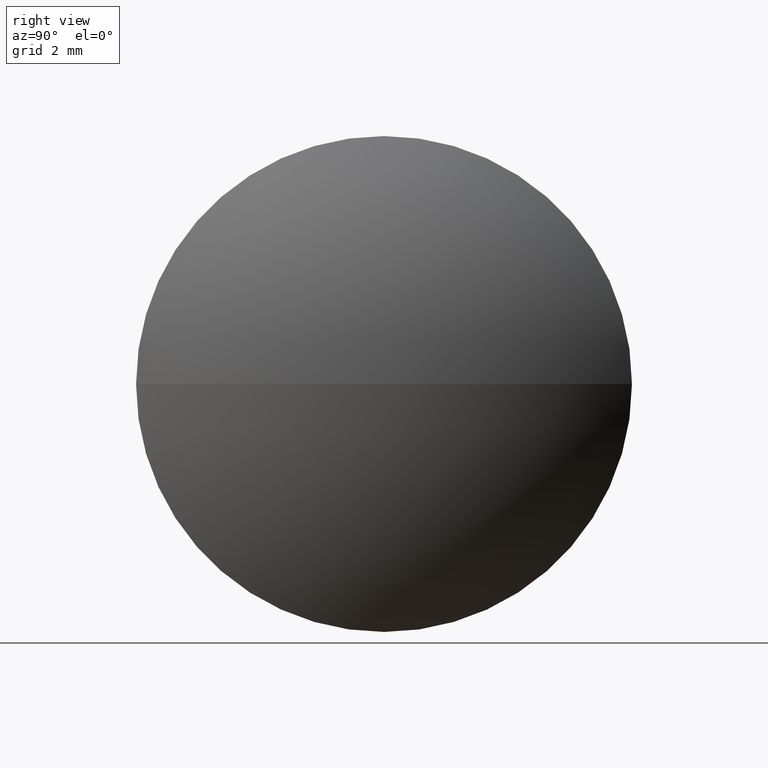
[diagram: clean part render]
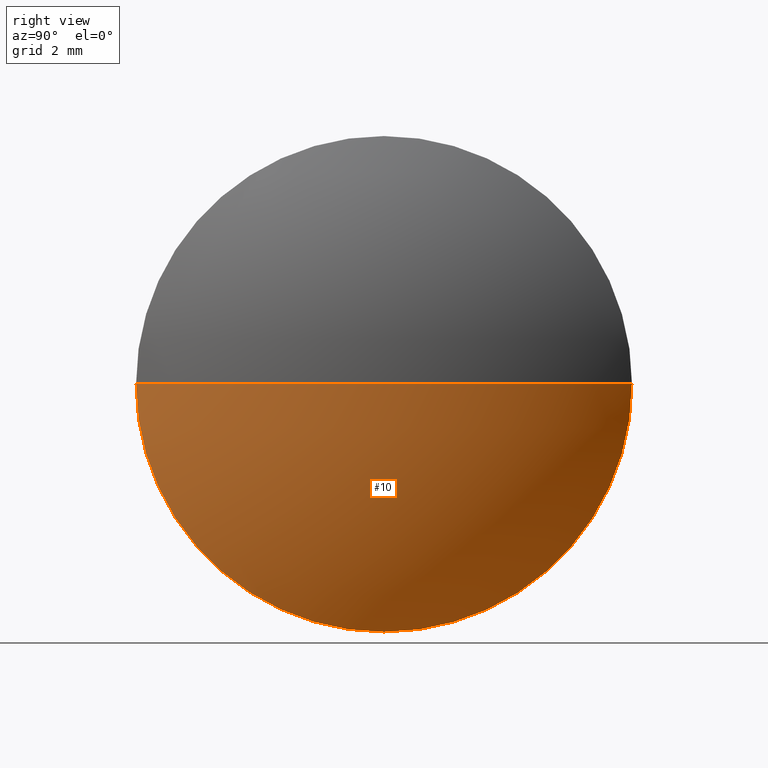
[diagram: same view with one face highlighted and labeled with its STEP entity id]
A machine part, right view. The second image highlights one B-rep face of the part: STEP entity #10.
In plain terms, the highlighted spherical surface has radius 13.6077 mm.
Its self-contained STEP definition (entity closure, byte-faithful):
#1 = DIRECTION ( 'NONE',  ( 0.0000000000000000000, 0.0000000000000000000, 1.000000000000000000 ) ) ;
#2 = VERTEX_POINT ( 'NONE', #249 ) ;
#10 = ADVANCED_FACE ( 'NONE', ( #83 ), #329, .T. ) ;
#20 = EDGE_CURVE ( 'NONE', #259, #31, #89, .T. ) ;
#31 = VERTEX_POINT ( 'NONE', #163 ) ;
#37 = EDGE_CURVE ( 'NONE', #2, #184, #187, .T. ) ;
#49 = AXIS2_PLACEMENT_3D ( 'NONE', #195, #224, #327 ) ;
#67 = AXIS2_PLACEMENT_3D ( 'NONE', #279, #74, #160 ) ;
#74 = DIRECTION ( 'NONE',  ( -0.0000000000000000000, 0.0000000000000000000, -1.000000000000000000 ) ) ;
#75 = CIRCLE ( 'NONE', #128, 7.999999999999992900 ) ;
#83 = FACE_OUTER_BOUND ( 'NONE', #240, .T. ) ;
#89 = CIRCLE ( 'NONE', #49, 13.60769230769229300 ) ;
#107 = AXIS2_PLACEMENT_3D ( 'NONE', #165, #284, #1 ) ;
#110 = CARTESIAN_POINT ( 'NONE',  ( 55.21179720338697900, 30.62432316421088900, -7.999999999999992900 ) ) ;
#112 = ORIENTED_EDGE ( 'NONE', *, *, #37, .F. ) ;
#120 = CARTESIAN_POINT ( 'NONE',  ( 57.81179720338698800, 30.62432316421088900, 0.0000000000000000000 ) ) ;
#128 = AXIS2_PLACEMENT_3D ( 'NONE', #198, #197, #311 ) ;
#140 = EDGE_CURVE ( 'NONE', #184, #31, #75, .T. ) ;
#160 = DIRECTION ( 'NONE',  ( 0.0000000000000000000, 1.000000000000000000, 0.0000000000000000000 ) ) ;
#163 = CARTESIAN_POINT ( 'NONE',  ( 55.21179720338697900, 22.62432316421089600, -9.797174393178819700E-016 ) ) ;
#165 = CARTESIAN_POINT ( 'NONE',  ( 55.21179720338697900, 30.62432316421088900, 0.0000000000000000000 ) ) ;
#178 = ORIENTED_EDGE ( 'NONE', *, *, #140, .F. ) ;
#184 = VERTEX_POINT ( 'NONE', #110 ) ;
#187 = CIRCLE ( 'NONE', #107, 7.999999999999992900 ) ;
#195 = CARTESIAN_POINT ( 'NONE',  ( 44.20410489569469100, 30.62432316421088900, 0.0000000000000000000 ) ) ;
#196 = AXIS2_PLACEMENT_3D ( 'NONE', #208, #315, #237 ) ;
#197 = DIRECTION ( 'NONE',  ( -1.000000000000000000, -0.0000000000000000000, -0.0000000000000000000 ) ) ;
#198 = CARTESIAN_POINT ( 'NONE',  ( 55.21179720338697900, 30.62432316421088900, 0.0000000000000000000 ) ) ;
#208 = CARTESIAN_POINT ( 'NONE',  ( 44.20410489569469100, 30.62432316421088900, 0.0000000000000000000 ) ) ;
#224 = DIRECTION ( 'NONE',  ( 0.0000000000000000000, 1.224646799147353200E-016, -1.000000000000000000 ) ) ;
#237 = DIRECTION ( 'NONE',  ( 1.000000000000000000, 0.0000000000000000000, 0.0000000000000000000 ) ) ;
#240 = EDGE_LOOP ( 'NONE', ( #285, #325, #178, #112 ) ) ;
#249 = CARTESIAN_POINT ( 'NONE',  ( 55.21179720338697900, 38.62432316421088500, 0.0000000000000000000 ) ) ;
#259 = VERTEX_POINT ( 'NONE', #120 ) ;
#274 = CIRCLE ( 'NONE', #196, 13.60769230769229300 ) ;
#279 = CARTESIAN_POINT ( 'NONE',  ( 44.20410489569469100, 30.62432316421088900, 0.0000000000000000000 ) ) ;
#284 = DIRECTION ( 'NONE',  ( -1.000000000000000000, -0.0000000000000000000, -0.0000000000000000000 ) ) ;
#285 = ORIENTED_EDGE ( 'NONE', *, *, #286, .F. ) ;
#286 = EDGE_CURVE ( 'NONE', #259, #2, #274, .T. ) ;
#311 = DIRECTION ( 'NONE',  ( 0.0000000000000000000, 0.0000000000000000000, 1.000000000000000000 ) ) ;
#315 = DIRECTION ( 'NONE',  ( -0.0000000000000000000, 0.0000000000000000000, 1.000000000000000000 ) ) ;
#325 = ORIENTED_EDGE ( 'NONE', *, *, #20, .T. ) ;
#327 = DIRECTION ( 'NONE',  ( 0.0000000000000000000, 1.000000000000000000, 1.224646799147353000E-016 ) ) ;
#329 = SPHERICAL_SURFACE ( 'NONE', #67, 13.60769230769229000 ) ;